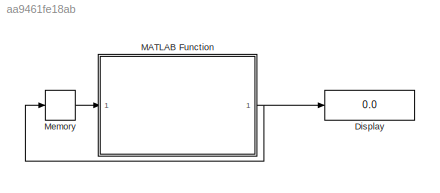
MODEL slx_aa9461fe18ab
KIND model
CONFIG AbsTol = auto
CONFIG EnableMultiTasking = off
CONFIG FixedStep = auto
CONFIG MaxStep = auto
CONFIG MinStep = auto
CONFIG RelTol = 1e-3
CONFIG SampleTimeConstraint = Unconstrained
CONFIG Solver = VariableStepAuto
CONFIG SolverName = VariableStepAuto
CONFIG StartTime = 0.0
CONFIG StopTime = inf
BLOCK [Display] Display
  Decimation = 1
  Ports = [1]
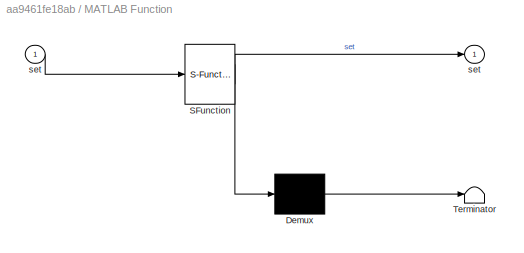
BLOCK [SubSystem] MATLAB Function
  ErrorFcn = Stateflow.Translate.translate
  PermitHierarchicalResolution = ExplicitOnly
  Ports = [1, 1]
  RequestExecContextInheritance = off
  SFBlockType = MATLAB Function
  TreatAsAtomicUnit = on
BLOCK [Demux] MATLAB Function/ Demux 
  Outputs = 1
  Ports = [1, 1]
BLOCK [S-Function] MATLAB Function/ SFunction 
  EnableBusSupport = on
  FunctionName = sf_sfun
  PortCounts = [1 2]
  Ports = [1, 2]
  SFcnIsStateOwnerBlock = off
  SFunctionDeploymentMode = off
  Tag = Stateflow S-Function TestMidiInput 2
BLOCK [Terminator] MATLAB Function/ Terminator 
BLOCK [Outport] MATLAB Function/set
  IconDisplay = Port number
BLOCK [Inport] MATLAB Function/set 
  IconDisplay = Port number
BLOCK [Memory] Memory
NET MATLAB Function:1 -> Display:1, Memory:1
LINE Memory:1 -> MATLAB Function:1
note: NET lines group one-source signal fan-out (src -> all destinations, sorted); 1:1 wires keep LINE
CHART MATLAB Function states=1 transitions=1
  STATE_LABEL 'eML_blk_kernel()'
  STATE_LABEL "SCRIPT:\nfunction set = parseInput(set)\n% code taken and modified from matlab's given simple synth\n\nmidiDeviceName = 'Yamaha S08-1';\nmidiInput = mididevice(midiDeviceName);\n\n    while true\n        msgs = midireceive(midiInput);\n        for i = 1:numel(msgs)\n            msg = msgs(i);\n            if isNoteOn(msg)             \n                set = union(set, msg.Note);\n            elseif isNoteOff(m...<+346ch>"
